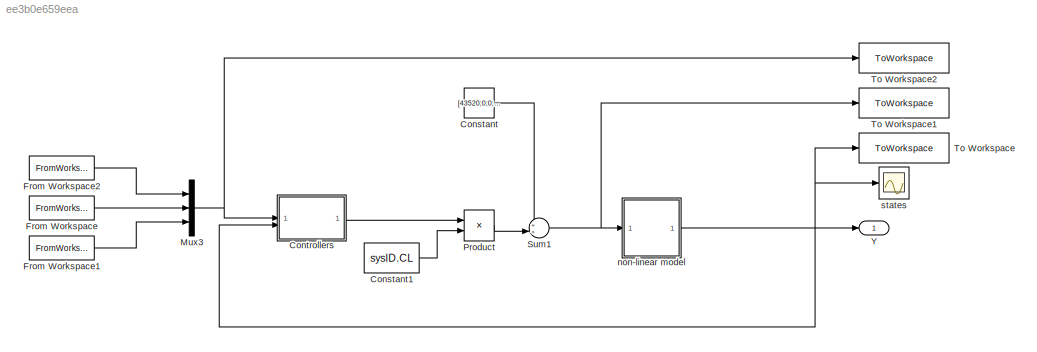
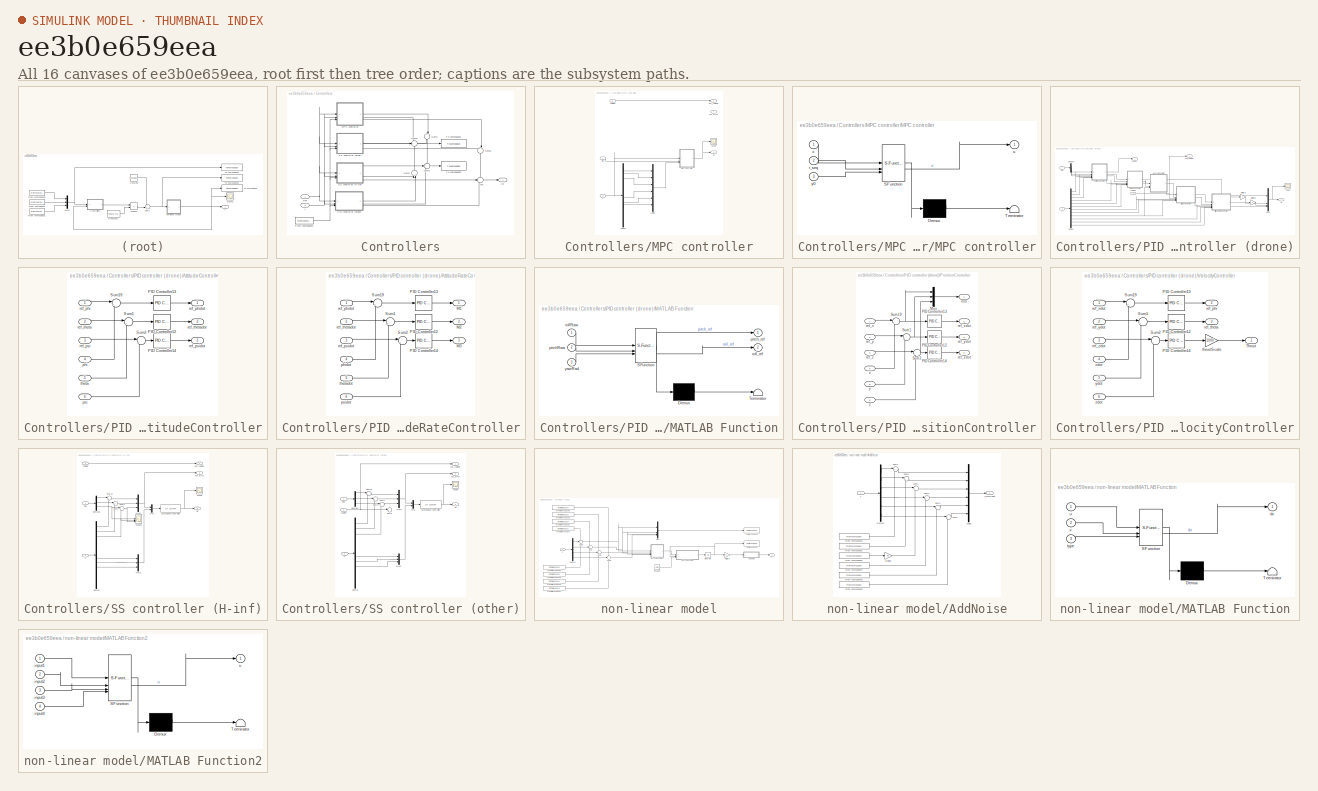
[diagram: thumbnail index - all 16 canvases of the model, root first then tree order]
MODEL slx_ee3b0e659eea
KIND model
CONFIG AbsTol = auto
CONFIG EnableMultiTasking = off
CONFIG FixedStep = Ts
CONFIG InitFcn = sysParam = load("sysParam.mat");\nload('./zz_temp/controlletTypeToUse.mat')\n
CONFIG MaxStep = 0.002
CONFIG MinStep = auto
CONFIG RelTol = 1e-3
CONFIG SampleTimeConstraint = Unconstrained
CONFIG SolverName = ode23t
CONFIG StartTime = 0.0
CONFIG StopTime = Tend
BLOCK [Constant] Constant
  Value = [43520;0;0;0]
BLOCK [Constant] Constant1
  Value = sysID.CL
BLOCK [SubSystem] Controllers
BLOCK [FromWorkspace] Controllers/From Workspace2
  VariableName = sim_ref_yaw
BLOCK [SubSystem] Controllers/MPC controller
  Commented = on
BLOCK [Mux] Controllers/MPC controller/Angles
  DisplayOption = bar
  Inputs = 6
BLOCK [Demux] Controllers/MPC controller/Demux
  Outputs = 12
BLOCK [SubSystem] Controllers/MPC controller/MPC controller
  ErrorFcn = Stateflow.Translate.translate
  PermitHierarchicalResolution = ExplicitOnly
  SFBlockType = MATLAB Function
  TreatAsAtomicUnit = on
BLOCK [Demux] Controllers/MPC controller/MPC controller/ Demux 
  Outputs = 1
BLOCK [S-Function] Controllers/MPC controller/MPC controller/ SFunction 
  EnableBusSupport = on
  FunctionName = sf_sfun
  PortCounts = [3 2]
  SFcnIsStateOwnerBlock = off
  SFunctionDeploymentMode = off
  Tag = Stateflow S-Function 5
BLOCK [Terminator] Controllers/MPC controller/MPC controller/ Terminator 
BLOCK [Inport] Controllers/MPC controller/MPC controller/r_seq
  Port = 2
BLOCK [Outport] Controllers/MPC controller/MPC controller/u
BLOCK [Inport] Controllers/MPC controller/MPC controller/x
BLOCK [Inport] Controllers/MPC controller/MPC controller/y0
  Port = 3
BLOCK [Inport] Controllers/MPC controller/Ref
BLOCK [Scope] Controllers/MPC controller/Scope
  Floating = off
  NumInputPorts = 1
  ScopeSpecificationString = Simulink.scopes.TimeScopeBlockCfg('CurrentConfiguration', extmgr.ConfigurationSet(extmgr.Configuration('Core','General UI',true),extmgr.Configuration('Core','Source UI',true),extmgr.Configuration('Sources','WiredSimulink',true,'DataLoggingVariableName','ScopeData2'),extmgr.Configuration('Visuals','Time Domain',true,'SerializedDisplays',{struct('MinYLimReal','-1208.62536','MaxYLimReal','134.29358',...<+1553ch>
BLOCK [Outport] Controllers/MPC controller/Uk
  Port = 3
BLOCK [Inport] Controllers/MPC controller/Y
  Port = 2
BLOCK [Outport] Controllers/MPC controller/out_error
  Port = 2
BLOCK [Outport] Controllers/MPC controller/out_yawRef
BLOCK [Inport] Controllers/MPC controller/yawRef
  Port = 3
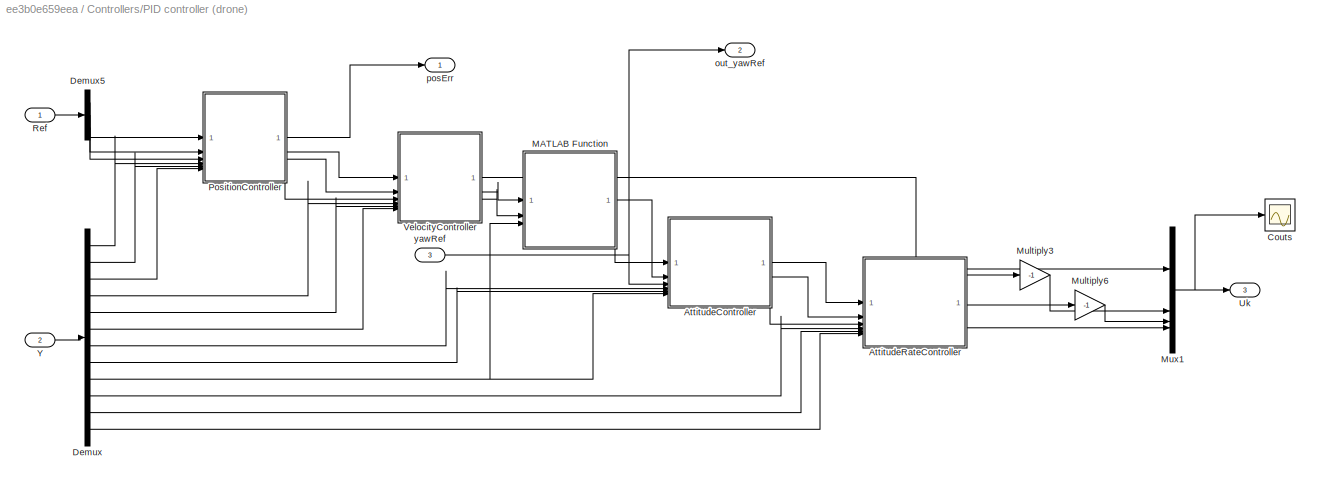
BLOCK [SubSystem] Controllers/PID controller (drone)
BLOCK [SubSystem] Controllers/PID controller (drone)/AttitudeController
BLOCK [Reference] Controllers/PID controller (drone)/AttitudeController/PID Controller12  REF=slpidlib/PID Controller
  LibrarySourceBlock = simulink/Continuous/PID Controller
  SourceBlock = slpidlib/PID Controller
  SourceType = PID 1dof
BLOCK [Reference] Controllers/PID controller (drone)/AttitudeController/PID Controller13  REF=slpidlib/PID Controller
  LibrarySourceBlock = simulink/Continuous/PID Controller
  SourceBlock = slpidlib/PID Controller
  SourceType = PID 1dof
BLOCK [Reference] Controllers/PID controller (drone)/AttitudeController/PID Controller14  REF=slpidlib/PID Controller
  LibrarySourceBlock = simulink/Continuous/PID Controller
  SourceBlock = slpidlib/PID Controller
  SourceType = PID 1dof
BLOCK [Sum] Controllers/PID controller (drone)/AttitudeController/Sum1
  Inputs = |+-
BLOCK [Sum] Controllers/PID controller (drone)/AttitudeController/Sum19
  Inputs = |+-
BLOCK [Sum] Controllers/PID controller (drone)/AttitudeController/Sum2
  Inputs = |+-
BLOCK [Inport] Controllers/PID controller (drone)/AttitudeController/phi
  Port = 4
BLOCK [Inport] Controllers/PID controller (drone)/AttitudeController/psi
  Port = 6
BLOCK [Inport] Controllers/PID controller (drone)/AttitudeController/ref_phi
BLOCK [Outport] Controllers/PID controller (drone)/AttitudeController/ref_phidot
BLOCK [Inport] Controllers/PID controller (drone)/AttitudeController/ref_psi
  Port = 3
BLOCK [Outport] Controllers/PID controller (drone)/AttitudeController/ref_psidot
  Port = 3
BLOCK [Inport] Controllers/PID controller (drone)/AttitudeController/ref_theta
  Port = 2
BLOCK [Outport] Controllers/PID controller (drone)/AttitudeController/ref_thetadot
  Port = 2
BLOCK [Inport] Controllers/PID controller (drone)/AttitudeController/theta
  Port = 5
BLOCK [SubSystem] Controllers/PID controller (drone)/AttitudeRateController
BLOCK [Outport] Controllers/PID controller (drone)/AttitudeRateController/M1
BLOCK [Outport] Controllers/PID controller (drone)/AttitudeRateController/M2
  Port = 2
BLOCK [Outport] Controllers/PID controller (drone)/AttitudeRateController/M3
  Port = 3
BLOCK [Reference] Controllers/PID controller (drone)/AttitudeRateController/PID Controller12  REF=slpidlib/PID Controller
  LibrarySourceBlock = simulink/Continuous/PID Controller
  SourceBlock = slpidlib/PID Controller
  SourceType = PID 1dof
BLOCK [Reference] Controllers/PID controller (drone)/AttitudeRateController/PID Controller13  REF=slpidlib/PID Controller
  LibrarySourceBlock = simulink/Continuous/PID Controller
  SourceBlock = slpidlib/PID Controller
  SourceType = PID 1dof
BLOCK [Reference] Controllers/PID controller (drone)/AttitudeRateController/PID Controller14  REF=slpidlib/PID Controller
  LibrarySourceBlock = simulink/Continuous/PID Controller
  SourceBlock = slpidlib/PID Controller
  SourceType = PID 1dof
BLOCK [Sum] Controllers/PID controller (drone)/AttitudeRateController/Sum1
  Inputs = |+-
BLOCK [Sum] Controllers/PID controller (drone)/AttitudeRateController/Sum19
  Inputs = |+-
BLOCK [Sum] Controllers/PID controller (drone)/AttitudeRateController/Sum2
  Inputs = |+-
BLOCK [Inport] Controllers/PID controller (drone)/AttitudeRateController/phidot
  Port = 4
BLOCK [Inport] Controllers/PID controller (drone)/AttitudeRateController/psidot
  Port = 6
BLOCK [Inport] Controllers/PID controller (drone)/AttitudeRateController/ref_phidot
BLOCK [Inport] Controllers/PID controller (drone)/AttitudeRateController/ref_psidot
  Port = 3
BLOCK [Inport] Controllers/PID controller (drone)/AttitudeRateController/ref_thetadot
  Port = 2
BLOCK [Inport] Controllers/PID controller (drone)/AttitudeRateController/thetadot
  Port = 5
BLOCK [Scope] Controllers/PID controller (drone)/Couts
  Floating = off
  NumInputPorts = 1
  ScopeSpecificationString = Simulink.scopes.TimeScopeBlockCfg('CurrentConfiguration', extmgr.ConfigurationSet(extmgr.Configuration('Core','General UI',true),extmgr.Configuration('Core','Source UI',true),extmgr.Configuration('Sources','WiredSimulink',true,'DataLoggingVariableName','ScopeData2'),extmgr.Configuration('Visuals','Time Domain',true,'SerializedDisplays',{struct('MinYLimReal','-1444.57338','MaxYLimReal','6495.14001'...<+1593ch>
BLOCK [Demux] Controllers/PID controller (drone)/Demux
  Outputs = 12
BLOCK [Demux] Controllers/PID controller (drone)/Demux5
  Outputs = 3
BLOCK [SubSystem] Controllers/PID controller (drone)/MATLAB Function
  ErrorFcn = Stateflow.Translate.translate
  PermitHierarchicalResolution = ExplicitOnly
  SFBlockType = MATLAB Function
  TreatAsAtomicUnit = on
BLOCK [Demux] Controllers/PID controller (drone)/MATLAB Function/ Demux 
  Outputs = 1
BLOCK [S-Function] Controllers/PID controller (drone)/MATLAB Function/ SFunction 
  EnableBusSupport = on
  FunctionName = sf_sfun
  PortCounts = [3 3]
  SFcnIsStateOwnerBlock = off
  SFunctionDeploymentMode = off
  Tag = Stateflow S-Function 3
BLOCK [Terminator] Controllers/PID controller (drone)/MATLAB Function/ Terminator 
BLOCK [Inport] Controllers/PID controller (drone)/MATLAB Function/pitchRaw
  Port = 2
BLOCK [Outport] Controllers/PID controller (drone)/MATLAB Function/pitch_ref
BLOCK [Inport] Controllers/PID controller (drone)/MATLAB Function/rollRaw
BLOCK [Outport] Controllers/PID controller (drone)/MATLAB Function/roll_ref
  Port = 2
BLOCK [Inport] Controllers/PID controller (drone)/MATLAB Function/yawRad
  Port = 3
BLOCK [Gain] Controllers/PID controller (drone)/Multiply3
  Gain = -1
BLOCK [Gain] Controllers/PID controller (drone)/Multiply6
  Gain = -1
BLOCK [Mux] Controllers/PID controller (drone)/Mux1
  DisplayOption = bar
BLOCK [SubSystem] Controllers/PID controller (drone)/PositionController
BLOCK [Mux] Controllers/PID controller (drone)/PositionController/Mux
  DisplayOption = bar
  Inputs = 3
BLOCK [Reference] Controllers/PID controller (drone)/PositionController/PID Controller12  REF=slpidlib/PID Controller
  LibrarySourceBlock = simulink/Continuous/PID Controller
  SourceBlock = slpidlib/PID Controller
  SourceType = PID 1dof
BLOCK [Reference] Controllers/PID controller (drone)/PositionController/PID Controller13  REF=slpidlib/PID Controller
  LibrarySourceBlock = simulink/Continuous/PID Controller
  SourceBlock = slpidlib/PID Controller
  SourceType = PID 1dof
BLOCK [Reference] Controllers/PID controller (drone)/PositionController/PID Controller14  REF=slpidlib/PID Controller
  LibrarySourceBlock = simulink/Continuous/PID Controller
  SourceBlock = slpidlib/PID Controller
  SourceType = PID 1dof
BLOCK [Sum] Controllers/PID controller (drone)/PositionController/Sum1
  Inputs = |+-
BLOCK [Sum] Controllers/PID controller (drone)/PositionController/Sum19
  Inputs = |+-
BLOCK [Sum] Controllers/PID controller (drone)/PositionController/Sum2
  Inputs = |+-
BLOCK [Outport] Controllers/PID controller (drone)/PositionController/errs
BLOCK [Inport] Controllers/PID controller (drone)/PositionController/ref_x
BLOCK [Outport] Controllers/PID controller (drone)/PositionController/ref_xdot
  Port = 2
BLOCK [Inport] Controllers/PID controller (drone)/PositionController/ref_y
  Port = 2
BLOCK [Outport] Controllers/PID controller (drone)/PositionController/ref_ydot
  Port = 3
BLOCK [Inport] Controllers/PID controller (drone)/PositionController/ref_z
  Port = 3
BLOCK [Outport] Controllers/PID controller (drone)/PositionController/ref_zdot
  Port = 4
BLOCK [Inport] Controllers/PID controller (drone)/PositionController/x
  Port = 4
BLOCK [Inport] Controllers/PID controller (drone)/PositionController/y
  Port = 5
BLOCK [Inport] Controllers/PID controller (drone)/PositionController/z
  Port = 6
BLOCK [Inport] Controllers/PID controller (drone)/Ref
BLOCK [Outport] Controllers/PID controller (drone)/Uk
  Port = 3
BLOCK [SubSystem] Controllers/PID controller (drone)/VelocityController
BLOCK [Reference] Controllers/PID controller (drone)/VelocityController/PID Controller12  REF=slpidlib/PID Controller
  LibrarySourceBlock = simulink/Continuous/PID Controller
  SourceBlock = slpidlib/PID Controller
  SourceType = PID 1dof
BLOCK [Reference] Controllers/PID controller (drone)/VelocityController/PID Controller13  REF=slpidlib/PID Controller
  LibrarySourceBlock = simulink/Continuous/PID Controller
  SourceBlock = slpidlib/PID Controller
  SourceType = PID 1dof
BLOCK [Reference] Controllers/PID controller (drone)/VelocityController/PID Controller14  REF=slpidlib/PID Controller
  LibrarySourceBlock = simulink/Continuous/PID Controller
  SourceBlock = slpidlib/PID Controller
  SourceType = PID 1dof
BLOCK [Sum] Controllers/PID controller (drone)/VelocityController/Sum1
  Inputs = |+-
BLOCK [Sum] Controllers/PID controller (drone)/VelocityController/Sum19
  Inputs = |+-
BLOCK [Sum] Controllers/PID controller (drone)/VelocityController/Sum2
  Inputs = |+-
BLOCK [Outport] Controllers/PID controller (drone)/VelocityController/Thrust
BLOCK [Outport] Controllers/PID controller (drone)/VelocityController/ref_phi
  Port = 2
BLOCK [Outport] Controllers/PID controller (drone)/VelocityController/ref_theta
  Port = 3
BLOCK [Inport] Controllers/PID controller (drone)/VelocityController/ref_xdot
BLOCK [Inport] Controllers/PID controller (drone)/VelocityController/ref_ydot
  Port = 2
BLOCK [Inport] Controllers/PID controller (drone)/VelocityController/ref_zdot
  Port = 3
BLOCK [Gain] Controllers/PID controller (drone)/VelocityController/thrustScale
  Gain = 1000
BLOCK [Inport] Controllers/PID controller (drone)/VelocityController/xdot
  Port = 4
BLOCK [Inport] Controllers/PID controller (drone)/VelocityController/ydot
  Port = 5
BLOCK [Inport] Controllers/PID controller (drone)/VelocityController/zdot
  Port = 6
BLOCK [Inport] Controllers/PID controller (drone)/Y
  Port = 2
BLOCK [Outport] Controllers/PID controller (drone)/out_yawRef
  Port = 2
BLOCK [Outport] Controllers/PID controller (drone)/posErr
BLOCK [Inport] Controllers/PID controller (drone)/yawRef
  Port = 3
BLOCK [Inport] Controllers/Ref
BLOCK [SubSystem] Controllers/SS controller (H-inf)
  Commented = on
BLOCK [Demux] Controllers/SS controller (H-inf)/Demux
  Outputs = 12
BLOCK [Demux] Controllers/SS controller (H-inf)/Demux5
  Outputs = 3
BLOCK [Mux] Controllers/SS controller (H-inf)/Mux
  DisplayOption = bar
  Inputs = 2
BLOCK [Mux] Controllers/SS controller (H-inf)/Mux2
  DisplayOption = bar
  Inputs = 3
BLOCK [Mux] Controllers/SS controller (H-inf)/Mux3
  DisplayOption = bar
  Inputs = 3
BLOCK [Inport] Controllers/SS controller (H-inf)/Ref
BLOCK [Scope] Controllers/SS controller (H-inf)/Scope
  Floating = off
  NumInputPorts = 1
  ScopeSpecificationString = Simulink.scopes.TimeScopeBlockCfg('CurrentConfiguration', extmgr.ConfigurationSet(extmgr.Configuration('Core','General UI',true),extmgr.Configuration('Core','Source UI',true),extmgr.Configuration('Sources','WiredSimulink',true,'DataLoggingVariableName','ScopeData1'),extmgr.Configuration('Visuals','Time Domain',true,'SerializedDisplays',{struct('MinYLimReal','-113.57752','MaxYLimReal','97.64165','Y...<+1549ch>
BLOCK [Scope] Controllers/SS controller (H-inf)/Scope1
  Floating = off
  NumInputPorts = 3
  ScopeSpecificationString = Simulink.scopes.TimeScopeBlockCfg('CurrentConfiguration', extmgr.ConfigurationSet(extmgr.Configuration('Core','General UI',true),extmgr.Configuration('Core','Source UI',true),extmgr.Configuration('Sources','WiredSimulink',true,'DataLoggingVariableName','ScopeData1'),extmgr.Configuration('Visuals','Time Domain',true,'SerializedDisplays',{struct('MinYLimReal','-0.00691','MaxYLimReal','0.03691','YLab...<+1439ch>
BLOCK [Reference] Controllers/SS controller (H-inf)/StateSpace Controller  REF=cstblocks/LTI System
  SourceBlock = cstblocks/LTI System
  SourceType = LTI Block
BLOCK [Sum] Controllers/SS controller (H-inf)/Sum1
  Inputs = |+-
BLOCK [Sum] Controllers/SS controller (H-inf)/Sum19
  Inputs = |+-
BLOCK [Sum] Controllers/SS controller (H-inf)/Sum2
  Inputs = |+-
BLOCK [Outport] Controllers/SS controller (H-inf)/Uk
  Port = 3
BLOCK [Inport] Controllers/SS controller (H-inf)/Y
  Port = 2
BLOCK [Outport] Controllers/SS controller (H-inf)/out_error
  Port = 2
BLOCK [Outport] Controllers/SS controller (H-inf)/out_yawRef
BLOCK [Inport] Controllers/SS controller (H-inf)/yawRef
  Port = 3
BLOCK [SubSystem] Controllers/SS controller (other)
  Commented = on
BLOCK [Demux] Controllers/SS controller (other)/Demux
  Outputs = 12
BLOCK [Demux] Controllers/SS controller (other)/Demux5
  Outputs = 3
BLOCK [Mux] Controllers/SS controller (other)/Mux
  DisplayOption = bar
  Inputs = 2
BLOCK [Mux] Controllers/SS controller (other)/Mux2
  DisplayOption = bar
  Inputs = 3
BLOCK [Mux] Controllers/SS controller (other)/Mux3
  DisplayOption = bar
  Inputs = 3
BLOCK [Inport] Controllers/SS controller (other)/Ref
BLOCK [Scope] Controllers/SS controller (other)/Scope
  Floating = off
  NumInputPorts = 1
  ScopeSpecificationString = Simulink.scopes.TimeScopeBlockCfg('CurrentConfiguration', extmgr.ConfigurationSet(extmgr.Configuration('Core','General UI',true),extmgr.Configuration('Core','Source UI',true),extmgr.Configuration('Sources','WiredSimulink',true,'DataLoggingVariableName','ScopeData1'),extmgr.Configuration('Visuals','Time Domain',true,'SerializedDisplays',{struct('MinYLimReal','-1208.62536','MaxYLimReal','134.29358',...<+1553ch>
BLOCK [Reference] Controllers/SS controller (other)/StateSpace Controller  REF=cstblocks/LTI System
  SourceBlock = cstblocks/LTI System
  SourceType = LTI Block
BLOCK [Sum] Controllers/SS controller (other)/Sum1
  Inputs = |+-
BLOCK [Sum] Controllers/SS controller (other)/Sum19
  Inputs = |+-
BLOCK [Sum] Controllers/SS controller (other)/Sum2
  Inputs = |+-
BLOCK [Sum] Controllers/SS controller (other)/Sum3
  Inputs = |+-
BLOCK [Outport] Controllers/SS controller (other)/Uk
  Port = 3
BLOCK [Inport] Controllers/SS controller (other)/Y
  Port = 2
BLOCK [Outport] Controllers/SS controller (other)/out_error
  Port = 2
BLOCK [Outport] Controllers/SS controller (other)/out_yawRef
BLOCK [Inport] Controllers/SS controller (other)/yawRef
  Port = 3
BLOCK [Sum] Controllers/Sum
  Inputs = +++
BLOCK [Sum] Controllers/Sum1
  Inputs = +++
BLOCK [Sum] Controllers/Sum3
  Inputs = ++|
  NameLocation = right
BLOCK [Sum] Controllers/Sum4
  Inputs = ++|
  NameLocation = left
BLOCK [Sum] Controllers/Sum5
  Inputs = ++|
  NameLocation = left
BLOCK [Sum] Controllers/Sum6
  Inputs = +++
BLOCK [ToWorkspace] Controllers/To Workspace1
  FixptAsFi = on
  MaxDataPoints = inf
  SampleTime = -1
  SaveFormat = Timeseries
  VariableName = error
BLOCK [ToWorkspace] Controllers/To Workspace2
  FixptAsFi = on
  MaxDataPoints = inf
  SampleTime = -1
  SaveFormat = Timeseries
  VariableName = yawRef
BLOCK [Outport] Controllers/Uk
BLOCK [Inport] Controllers/Y
  Port = 2
BLOCK [FromWorkspace] From Workspace
  VariableName = sim_ref_y
BLOCK [FromWorkspace] From Workspace1
  VariableName = sim_ref_z
BLOCK [FromWorkspace] From Workspace2
  VariableName = sim_ref_x
BLOCK [Mux] Mux3
  DisplayOption = bar
  Inputs = 3
BLOCK [Product] Product
BLOCK [Sum] Sum1
  Inputs = ++|
BLOCK [ToWorkspace] To Workspace
  FixptAsFi = on
  MaxDataPoints = inf
  SampleTime = -1
  SaveFormat = Timeseries
  VariableName = pos
BLOCK [ToWorkspace] To Workspace1
  FixptAsFi = on
  MaxDataPoints = inf
  SampleTime = -1
  SaveFormat = Timeseries
  VariableName = controllerOutput
BLOCK [ToWorkspace] To Workspace2
  FixptAsFi = on
  MaxDataPoints = inf
  SampleTime = -1
  SaveFormat = Timeseries
  VariableName = posRef
BLOCK [Outport] Y
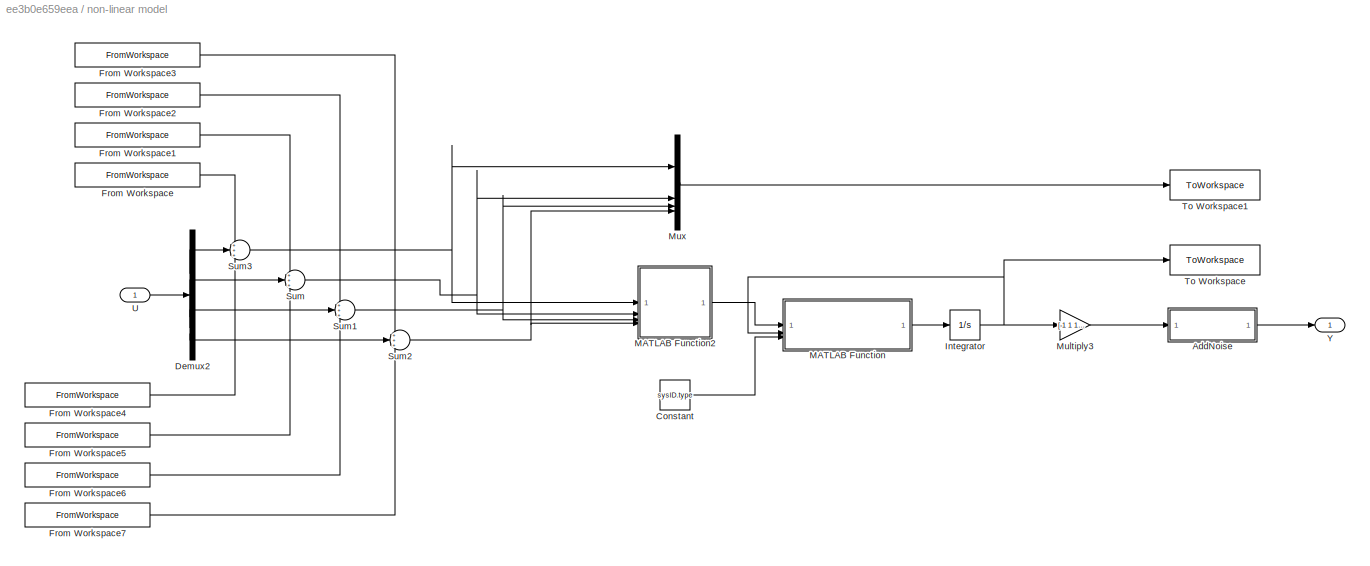
BLOCK [SubSystem] non-linear model
BLOCK [SubSystem] non-linear model/AddNoise
BLOCK [Mux] non-linear model/AddNoise/Angles
  DisplayOption = bar
  Inputs = 6
BLOCK [Demux] non-linear model/AddNoise/Demux
  Outputs = 6
BLOCK [FromWorkspace] non-linear model/AddNoise/From Workspace1
  VariableName = noiseParam.y
BLOCK [FromWorkspace] non-linear model/AddNoise/From Workspace2
  VariableName = noiseParam.z
BLOCK [FromWorkspace] non-linear model/AddNoise/From Workspace3
  VariableName = noiseParam.x
BLOCK [FromWorkspace] non-linear model/AddNoise/From Workspace4
  VariableName = noiseParam.phi
BLOCK [FromWorkspace] non-linear model/AddNoise/From Workspace5
  VariableName = noiseParam.psi
BLOCK [FromWorkspace] non-linear model/AddNoise/From Workspace6
  VariableName = noiseParam.theta
BLOCK [Gain] non-linear model/AddNoise/Multiply
  Gain = 0.5
BLOCK [Sum] non-linear model/AddNoise/Sum1
  Inputs = |++
BLOCK [Sum] non-linear model/AddNoise/Sum2
  Inputs = |++
BLOCK [Sum] non-linear model/AddNoise/Sum3
  Inputs = |++
BLOCK [Sum] non-linear model/AddNoise/Sum4
  Inputs = |++
BLOCK [Sum] non-linear model/AddNoise/Sum5
  Inputs = |++
BLOCK [Sum] non-linear model/AddNoise/Sum6
  Inputs = |++
BLOCK [Inport] non-linear model/AddNoise/Y
BLOCK [Outport] non-linear model/AddNoise/Y_withNoise
BLOCK [Constant] non-linear model/Constant
  Value = sysID.type
BLOCK [Demux] non-linear model/Demux2
BLOCK [FromWorkspace] non-linear model/From Workspace
  VariableName = sysID.Thrust_PRBS
BLOCK [FromWorkspace] non-linear model/From Workspace1
  VariableName = sysID.M1_PRBS
BLOCK [FromWorkspace] non-linear model/From Workspace2
  VariableName = sysID.M2_PRBS
BLOCK [FromWorkspace] non-linear model/From Workspace3
  VariableName = sysID.M3_PRBS
BLOCK [FromWorkspace] non-linear model/From Workspace4
  VariableName = noiseParam.Thrust
BLOCK [FromWorkspace] non-linear model/From Workspace5
  VariableName = noiseParam.Mx
BLOCK [FromWorkspace] non-linear model/From Workspace6
  VariableName = noiseParam.My
BLOCK [FromWorkspace] non-linear model/From Workspace7
  VariableName = noiseParam.Mz
BLOCK [Integrator] non-linear model/Integrator
  InitialCondition = [0;0;0;0;0;0;0;0;0;0;0;0]
  LimitOutput = on
  LowerSaturationLimit = -[inf inf 0 inf inf inf inf inf inf inf inf inf]'
  NameLocation = top
  UpperSaturationLimit = [inf inf inf inf inf inf inf inf inf inf inf inf]'
BLOCK [SubSystem] non-linear model/MATLAB Function
  ErrorFcn = Stateflow.Translate.translate
  PermitHierarchicalResolution = ExplicitOnly
  SFBlockType = MATLAB Function
  TreatAsAtomicUnit = on
BLOCK [Demux] non-linear model/MATLAB Function/ Demux 
  Outputs = 1
BLOCK [S-Function] non-linear model/MATLAB Function/ SFunction 
  EnableBusSupport = on
  FunctionName = sf_sfun
  Parameters = sys_param2
  PortCounts = [3 2]
  SFcnIsStateOwnerBlock = off
  SFunctionDeploymentMode = off
  Tag = Stateflow S-Function 2
BLOCK [Terminator] non-linear model/MATLAB Function/ Terminator 
BLOCK [Outport] non-linear model/MATLAB Function/dx
BLOCK [Inport] non-linear model/MATLAB Function/type
  Port = 3
BLOCK [Inport] non-linear model/MATLAB Function/u
BLOCK [Inport] non-linear model/MATLAB Function/x
  Port = 2
BLOCK [SubSystem] non-linear model/MATLAB Function2
  ErrorFcn = Stateflow.Translate.translate
  PermitHierarchicalResolution = ExplicitOnly
  SFBlockType = MATLAB Function
  TreatAsAtomicUnit = on
BLOCK [Demux] non-linear model/MATLAB Function2/ Demux 
  Outputs = 1
BLOCK [S-Function] non-linear model/MATLAB Function2/ SFunction 
  EnableBusSupport = on
  FunctionName = sf_sfun
  PortCounts = [4 2]
  SFcnIsStateOwnerBlock = off
  SFunctionDeploymentMode = off
  Tag = Stateflow S-Function 4
BLOCK [Terminator] non-linear model/MATLAB Function2/ Terminator 
BLOCK [Inport] non-linear model/MATLAB Function2/input1
BLOCK [Inport] non-linear model/MATLAB Function2/input2
  Port = 2
BLOCK [Inport] non-linear model/MATLAB Function2/input3
  Port = 3
BLOCK [Inport] non-linear model/MATLAB Function2/input4
  Port = 4
BLOCK [Outport] non-linear model/MATLAB Function2/u
BLOCK [Gain] non-linear model/Multiply3
  Gain = [-1 1 1 -1 1 1 180/pi 180/pi 180/pi 180/pi 180/pi 180/pi]'
BLOCK [Mux] non-linear model/Mux
  DisplayOption = bar
BLOCK [Sum] non-linear model/Sum
  Inputs = +++
BLOCK [Sum] non-linear model/Sum1
  Inputs = +++
BLOCK [Sum] non-linear model/Sum2
  Inputs = +++
BLOCK [Sum] non-linear model/Sum3
  Inputs = +++
BLOCK [ToWorkspace] non-linear model/To Workspace
  FixptAsFi = on
  MaxDataPoints = inf
  SampleTime = -1
  SaveFormat = Timeseries
  VariableName = stateVec
BLOCK [ToWorkspace] non-linear model/To Workspace1
  FixptAsFi = on
  MaxDataPoints = inf
  SampleTime = -1
  SaveFormat = Timeseries
  VariableName = plantInput
BLOCK [Inport] non-linear model/U
  PortDimensions = 4
BLOCK [Outport] non-linear model/Y
BLOCK [Scope] states
  Floating = off
  NumInputPorts = 1
  ScopeSpecificationString = Simulink.scopes.TimeScopeBlockCfg('CurrentConfiguration', extmgr.ConfigurationSet(extmgr.Configuration('Core','General UI',true),extmgr.Configuration('Core','Source UI',true),extmgr.Configuration('Sources','WiredSimulink',true),extmgr.Configuration('Visuals','Time Domain',true,'SerializedDisplays',{struct('MinYLimReal','-25.23049','MaxYLimReal','18.95808','YLabelReal','','MinYLimMag','0.00000','Ma...<+1704ch>
LINE Constant1:1 -> Product:2
LINE Constant:1 -> Sum1:1
NET Controllers/From Workspace2:1 -> Controllers/MPC controller:3, Controllers/PID controller (drone):3, Controllers/SS controller (H-inf):3, Controllers/SS controller (other):3
LINE Controllers/MPC controller/Angles:1 -> Controllers/MPC controller/MPC controller:3
LINE Controllers/MPC controller/Demux:1 -> Controllers/MPC controller/Angles:1
LINE Controllers/MPC controller/Demux:2 -> Controllers/MPC controller/Angles:2
LINE Controllers/MPC controller/Demux:3 -> Controllers/MPC controller/Angles:3
LINE Controllers/MPC controller/Demux:7 -> Controllers/MPC controller/Angles:4
LINE Controllers/MPC controller/Demux:8 -> Controllers/MPC controller/Angles:5
LINE Controllers/MPC controller/Demux:9 -> Controllers/MPC controller/Angles:6
NET Controllers/MPC controller/MPC controller:1 -> Controllers/MPC controller/Scope:1, Controllers/MPC controller/Uk:1
LINE Controllers/MPC controller/Ref:1 -> Controllers/MPC controller/MPC controller:2
NET Controllers/MPC controller/Y:1 -> Controllers/MPC controller/Demux:1, Controllers/MPC controller/MPC controller:1
LINE Controllers/MPC controller/yawRef:1 -> Controllers/MPC controller/out_yawRef:1
LINE Controllers/MPC controller:1 -> Controllers/Sum4:2
LINE Controllers/MPC controller:2 -> Controllers/Sum6:1
LINE Controllers/MPC controller:3 -> Controllers/Sum5:2
LINE Controllers/PID controller (drone)/AttitudeController/PID Controller12:1 -> Controllers/PID controller (drone)/AttitudeController/ref_thetadot:1
LINE Controllers/PID controller (drone)/AttitudeController/PID Controller13:1 -> Controllers/PID controller (drone)/AttitudeController/ref_phidot:1
LINE Controllers/PID controller (drone)/AttitudeController/PID Controller14:1 -> Controllers/PID controller (drone)/AttitudeController/ref_psidot:1
LINE Controllers/PID controller (drone)/AttitudeController/Sum19:1 -> Controllers/PID controller (drone)/AttitudeController/PID Controller13:1
LINE Controllers/PID controller (drone)/AttitudeController/Sum1:1 -> Controllers/PID controller (drone)/AttitudeController/PID Controller12:1
LINE Controllers/PID controller (drone)/AttitudeController/Sum2:1 -> Controllers/PID controller (drone)/AttitudeController/PID Controller14:1
LINE Controllers/PID controller (drone)/AttitudeController/phi:1 -> Controllers/PID controller (drone)/AttitudeController/Sum19:2
LINE Controllers/PID controller (drone)/AttitudeController/psi:1 -> Controllers/PID controller (drone)/AttitudeController/Sum2:2
LINE Controllers/PID controller (drone)/AttitudeController/ref_phi:1 -> Controllers/PID controller (drone)/AttitudeController/Sum19:1
LINE Controllers/PID controller (drone)/AttitudeController/ref_psi:1 -> Controllers/PID controller (drone)/AttitudeController/Sum2:1
LINE Controllers/PID controller (drone)/AttitudeController/ref_theta:1 -> Controllers/PID controller (drone)/AttitudeController/Sum1:1
LINE Controllers/PID controller (drone)/AttitudeController/theta:1 -> Controllers/PID controller (drone)/AttitudeController/Sum1:2
LINE Controllers/PID controller (drone)/AttitudeController:1 -> Controllers/PID controller (drone)/AttitudeRateController:1
LINE Controllers/PID controller (drone)/AttitudeController:2 -> Controllers/PID controller (drone)/AttitudeRateController:2
LINE Controllers/PID controller (drone)/AttitudeController:3 -> Controllers/PID controller (drone)/AttitudeRateController:3
LINE Controllers/PID controller (drone)/AttitudeRateController/PID Controller12:1 -> Controllers/PID controller (drone)/AttitudeRateController/M2:1
LINE Controllers/PID controller (drone)/AttitudeRateController/PID Controller13:1 -> Controllers/PID controller (drone)/AttitudeRateController/M1:1
LINE Controllers/PID controller (drone)/AttitudeRateController/PID Controller14:1 -> Controllers/PID controller (drone)/AttitudeRateController/M3:1
LINE Controllers/PID controller (drone)/AttitudeRateController/Sum19:1 -> Controllers/PID controller (drone)/AttitudeRateController/PID Controller13:1
LINE Controllers/PID controller (drone)/AttitudeRateController/Sum1:1 -> Controllers/PID controller (drone)/AttitudeRateController/PID Controller12:1
LINE Controllers/PID controller (drone)/AttitudeRateController/Sum2:1 -> Controllers/PID controller (drone)/AttitudeRateController/PID Controller14:1
LINE Controllers/PID controller (drone)/AttitudeRateController/phidot:1 -> Controllers/PID controller (drone)/AttitudeRateController/Sum19:2
LINE Controllers/PID controller (drone)/AttitudeRateController/psidot:1 -> Controllers/PID controller (drone)/AttitudeRateController/Sum2:2
LINE Controllers/PID controller (drone)/AttitudeRateController/ref_phidot:1 -> Controllers/PID controller (drone)/AttitudeRateController/Sum19:1
LINE Controllers/PID controller (drone)/AttitudeRateController/ref_psidot:1 -> Controllers/PID controller (drone)/AttitudeRateController/Sum2:1
LINE Controllers/PID controller (drone)/AttitudeRateController/ref_thetadot:1 -> Controllers/PID controller (drone)/AttitudeRateController/Sum1:1
LINE Controllers/PID controller (drone)/AttitudeRateController/thetadot:1 -> Controllers/PID controller (drone)/AttitudeRateController/Sum1:2
LINE Controllers/PID controller (drone)/AttitudeRateController:1 -> Controllers/PID controller (drone)/Multiply3:1
LINE Controllers/PID controller (drone)/AttitudeRateController:2 -> Controllers/PID controller (drone)/Multiply6:1
LINE Controllers/PID controller (drone)/AttitudeRateController:3 -> Controllers/PID controller (drone)/Mux1:4
LINE Controllers/PID controller (drone)/Demux5:1 -> Controllers/PID controller (drone)/PositionController:1
LINE Controllers/PID controller (drone)/Demux5:2 -> Controllers/PID controller (drone)/PositionController:2
LINE Controllers/PID controller (drone)/Demux5:3 -> Controllers/PID controller (drone)/PositionController:3
LINE Controllers/PID controller (drone)/Demux:1 -> Controllers/PID controller (drone)/PositionController:4
LINE Controllers/PID controller (drone)/Demux:10 -> Controllers/PID controller (drone)/AttitudeRateController:4
LINE Controllers/PID controller (drone)/Demux:11 -> Controllers/PID controller (drone)/AttitudeRateController:5
LINE Controllers/PID controller (drone)/Demux:12 -> Controllers/PID controller (drone)/AttitudeRateController:6
LINE Controllers/PID controller (drone)/Demux:2 -> Controllers/PID controller (drone)/PositionController:5
LINE Controllers/PID controller (drone)/Demux:3 -> Controllers/PID controller (drone)/PositionController:6
LINE Controllers/PID controller (drone)/Demux:4 -> Controllers/PID controller (drone)/VelocityController:4
LINE Controllers/PID controller (drone)/Demux:5 -> Controllers/PID controller (drone)/VelocityController:5
LINE Controllers/PID controller (drone)/Demux:6 -> Controllers/PID controller (drone)/VelocityController:6
LINE Controllers/PID controller (drone)/Demux:7 -> Controllers/PID controller (drone)/AttitudeController:4
LINE Controllers/PID controller (drone)/Demux:8 -> Controllers/PID controller (drone)/AttitudeController:5
NET Controllers/PID controller (drone)/Demux:9 -> Controllers/PID controller (drone)/AttitudeController:6, Controllers/PID controller (drone)/MATLAB Function:3
LINE Controllers/PID controller (drone)/MATLAB Function:1 -> Controllers/PID controller (drone)/AttitudeController:2
LINE Controllers/PID controller (drone)/MATLAB Function:2 -> Controllers/PID controller (drone)/AttitudeController:1
LINE Controllers/PID controller (drone)/Multiply3:1 -> Controllers/PID controller (drone)/Mux1:2
LINE Controllers/PID controller (drone)/Multiply6:1 -> Controllers/PID controller (drone)/Mux1:3
NET Controllers/PID controller (drone)/Mux1:1 -> Controllers/PID controller (drone)/Couts:1, Controllers/PID controller (drone)/Uk:1
LINE Controllers/PID controller (drone)/PositionController/Mux:1 -> Controllers/PID controller (drone)/PositionController/errs:1
LINE Controllers/PID controller (drone)/PositionController/PID Controller12:1 -> Controllers/PID controller (drone)/PositionController/ref_ydot:1
LINE Controllers/PID controller (drone)/PositionController/PID Controller13:1 -> Controllers/PID controller (drone)/PositionController/ref_xdot:1
LINE Controllers/PID controller (drone)/PositionController/PID Controller14:1 -> Controllers/PID controller (drone)/PositionController/ref_zdot:1
NET Controllers/PID controller (drone)/PositionController/Sum19:1 -> Controllers/PID controller (drone)/PositionController/Mux:1, Controllers/PID controller (drone)/PositionController/PID Controller13:1
NET Controllers/PID controller (drone)/PositionController/Sum1:1 -> Controllers/PID controller (drone)/PositionController/Mux:2, Controllers/PID controller (drone)/PositionController/PID Controller12:1
NET Controllers/PID controller (drone)/PositionController/Sum2:1 -> Controllers/PID controller (drone)/PositionController/Mux:3, Controllers/PID controller (drone)/PositionController/PID Controller14:1
LINE Controllers/PID controller (drone)/PositionController/ref_x:1 -> Controllers/PID controller (drone)/PositionController/Sum19:1
LINE Controllers/PID controller (drone)/PositionController/ref_y:1 -> Controllers/PID controller (drone)/PositionController/Sum1:1
LINE Controllers/PID controller (drone)/PositionController/ref_z:1 -> Controllers/PID controller (drone)/PositionController/Sum2:1
LINE Controllers/PID controller (drone)/PositionController/x:1 -> Controllers/PID controller (drone)/PositionController/Sum19:2
LINE Controllers/PID controller (drone)/PositionController/y:1 -> Controllers/PID controller (drone)/PositionController/Sum1:2
LINE Controllers/PID controller (drone)/PositionController/z:1 -> Controllers/PID controller (drone)/PositionController/Sum2:2
LINE Controllers/PID controller (drone)/PositionController:1 -> Controllers/PID controller (drone)/posErr:1
LINE Controllers/PID controller (drone)/PositionController:2 -> Controllers/PID controller (drone)/VelocityController:1
LINE Controllers/PID controller (drone)/PositionController:3 -> Controllers/PID controller (drone)/VelocityController:2
LINE Controllers/PID controller (drone)/PositionController:4 -> Controllers/PID controller (drone)/VelocityController:3
LINE Controllers/PID controller (drone)/Ref:1 -> Controllers/PID controller (drone)/Demux5:1
LINE Controllers/PID controller (drone)/VelocityController/PID Controller12:1 -> Controllers/PID controller (drone)/VelocityController/ref_theta:1
LINE Controllers/PID controller (drone)/VelocityController/PID Controller13:1 -> Controllers/PID controller (drone)/VelocityController/ref_phi:1
LINE Controllers/PID controller (drone)/VelocityController/PID Controller14:1 -> Controllers/PID controller (drone)/VelocityController/thrustScale:1
LINE Controllers/PID controller (drone)/VelocityController/Sum19:1 -> Controllers/PID controller (drone)/VelocityController/PID Controller13:1
LINE Controllers/PID controller (drone)/VelocityController/Sum1:1 -> Controllers/PID controller (drone)/VelocityController/PID Controller12:1
LINE Controllers/PID controller (drone)/VelocityController/Sum2:1 -> Controllers/PID controller (drone)/VelocityController/PID Controller14:1
LINE Controllers/PID controller (drone)/VelocityController/ref_xdot:1 -> Controllers/PID controller (drone)/VelocityController/Sum19:1
LINE Controllers/PID controller (drone)/VelocityController/ref_ydot:1 -> Controllers/PID controller (drone)/VelocityController/Sum1:1
LINE Controllers/PID controller (drone)/VelocityController/ref_zdot:1 -> Controllers/PID controller (drone)/VelocityController/Sum2:1
LINE Controllers/PID controller (drone)/VelocityController/thrustScale:1 -> Controllers/PID controller (drone)/VelocityController/Thrust:1
LINE Controllers/PID controller (drone)/VelocityController/xdot:1 -> Controllers/PID controller (drone)/VelocityController/Sum19:2
LINE Controllers/PID controller (drone)/VelocityController/ydot:1 -> Controllers/PID controller (drone)/VelocityController/Sum1:2
LINE Controllers/PID controller (drone)/VelocityController/zdot:1 -> Controllers/PID controller (drone)/VelocityController/Sum2:2
LINE Controllers/PID controller (drone)/VelocityController:1 -> Controllers/PID controller (drone)/Mux1:1
LINE Controllers/PID controller (drone)/VelocityController:2 -> Controllers/PID controller (drone)/MATLAB Function:1
LINE Controllers/PID controller (drone)/VelocityController:3 -> Controllers/PID controller (drone)/MATLAB Function:2
LINE Controllers/PID controller (drone)/Y:1 -> Controllers/PID controller (drone)/Demux:1
NET Controllers/PID controller (drone)/yawRef:1 -> Controllers/PID controller (drone)/AttitudeController:3, Controllers/PID controller (drone)/out_yawRef:1
LINE Controllers/PID controller (drone):1 -> Controllers/Sum3:2
LINE Controllers/PID controller (drone):2 -> Controllers/Sum1:3
LINE Controllers/PID controller (drone):3 -> Controllers/Sum:3
NET Controllers/Ref:1 -> Controllers/MPC controller:1, Controllers/PID controller (drone):1, Controllers/SS controller (H-inf):1, Controllers/SS controller (other):1
LINE Controllers/SS controller (H-inf)/Demux5:1 -> Controllers/SS controller (H-inf)/Sum19:1
LINE Controllers/SS controller (H-inf)/Demux5:2 -> Controllers/SS controller (H-inf)/Sum1:1
NET Controllers/SS controller (H-inf)/Demux5:3 -> Controllers/SS controller (H-inf)/Scope1:1, Controllers/SS controller (H-inf)/Sum2:1
LINE Controllers/SS controller (H-inf)/Demux:1 -> Controllers/SS controller (H-inf)/Sum19:2
LINE Controllers/SS controller (H-inf)/Demux:2 -> Controllers/SS controller (H-inf)/Sum1:2
NET Controllers/SS controller (H-inf)/Demux:3 -> Controllers/SS controller (H-inf)/Scope1:2, Controllers/SS controller (H-inf)/Sum2:2
LINE Controllers/SS controller (H-inf)/Demux:7 -> Controllers/SS controller (H-inf)/Mux3:1
LINE Controllers/SS controller (H-inf)/Demux:8 -> Controllers/SS controller (H-inf)/Mux3:2
LINE Controllers/SS controller (H-inf)/Demux:9 -> Controllers/SS controller (H-inf)/Mux3:3
NET Controllers/SS controller (H-inf)/Mux2:1 -> Controllers/SS controller (H-inf)/Mux:1, Controllers/SS controller (H-inf)/out_error:1
LINE Controllers/SS controller (H-inf)/Mux3:1 -> Controllers/SS controller (H-inf)/Mux:2
LINE Controllers/SS controller (H-inf)/Mux:1 -> Controllers/SS controller (H-inf)/StateSpace Controller:1
LINE Controllers/SS controller (H-inf)/Ref:1 -> Controllers/SS controller (H-inf)/Demux5:1
NET Controllers/SS controller (H-inf)/StateSpace Controller:1 -> Controllers/SS controller (H-inf)/Scope:1, Controllers/SS controller (H-inf)/Uk:1
LINE Controllers/SS controller (H-inf)/Sum19:1 -> Controllers/SS controller (H-inf)/Mux2:1
LINE Controllers/SS controller (H-inf)/Sum1:1 -> Controllers/SS controller (H-inf)/Mux2:2
NET Controllers/SS controller (H-inf)/Sum2:1 -> Controllers/SS controller (H-inf)/Mux2:3, Controllers/SS controller (H-inf)/Scope1:3
LINE Controllers/SS controller (H-inf)/Y:1 -> Controllers/SS controller (H-inf)/Demux:1
LINE Controllers/SS controller (H-inf)/yawRef:1 -> Controllers/SS controller (H-inf)/out_yawRef:1
LINE Controllers/SS controller (H-inf):1 -> Controllers/Sum1:2
LINE Controllers/SS controller (H-inf):2 -> Controllers/Sum3:1
LINE Controllers/SS controller (H-inf):3 -> Controllers/Sum:2
LINE Controllers/SS controller (other)/Demux5:1 -> Controllers/SS controller (other)/Sum19:1
LINE Controllers/SS controller (other)/Demux5:2 -> Controllers/SS controller (other)/Sum1:1
LINE Controllers/SS controller (other)/Demux5:3 -> Controllers/SS controller (other)/Sum2:1
LINE Controllers/SS controller (other)/Demux:1 -> Controllers/SS controller (other)/Sum19:2
LINE Controllers/SS controller (other)/Demux:2 -> Controllers/SS controller (other)/Sum1:2
LINE Controllers/SS controller (other)/Demux:3 -> Controllers/SS controller (other)/Sum2:2
LINE Controllers/SS controller (other)/Demux:7 -> Controllers/SS controller (other)/Mux3:1
LINE Controllers/SS controller (other)/Demux:8 -> Controllers/SS controller (other)/Mux3:2
LINE Controllers/SS controller (other)/Demux:9 -> Controllers/SS controller (other)/Mux3:3
NET Controllers/SS controller (other)/Mux2:1 -> Controllers/SS controller (other)/Mux:1, Controllers/SS controller (other)/out_error:1
LINE Controllers/SS controller (other)/Mux3:1 -> Controllers/SS controller (other)/Mux:2
LINE Controllers/SS controller (other)/Mux:1 -> Controllers/SS controller (other)/StateSpace Controller:1
LINE Controllers/SS controller (other)/Ref:1 -> Controllers/SS controller (other)/Demux5:1
NET Controllers/SS controller (other)/StateSpace Controller:1 -> Controllers/SS controller (other)/Scope:1, Controllers/SS controller (other)/Uk:1
LINE Controllers/SS controller (other)/Sum19:1 -> Controllers/SS controller (other)/Mux2:1
LINE Controllers/SS controller (other)/Sum1:1 -> Controllers/SS controller (other)/Mux2:2
LINE Controllers/SS controller (other)/Sum2:1 -> Controllers/SS controller (other)/Mux2:3
LINE Controllers/SS controller (other)/Y:1 -> Controllers/SS controller (other)/Demux:1
NET Controllers/SS controller (other)/yawRef:1 -> Controllers/SS controller (other)/Sum3:1, Controllers/SS controller (other)/out_yawRef:1
LINE Controllers/SS controller (other):1 -> Controllers/Sum4:1
LINE Controllers/SS controller (other):2 -> Controllers/Sum6:2
LINE Controllers/SS controller (other):3 -> Controllers/Sum5:1
LINE Controllers/Sum1:1 -> Controllers/To Workspace2:1
LINE Controllers/Sum3:1 -> Controllers/Sum6:3
LINE Controllers/Sum4:1 -> Controllers/Sum1:1
LINE Controllers/Sum5:1 -> Controllers/Sum:1
LINE Controllers/Sum6:1 -> Controllers/To Workspace1:1
LINE Controllers/Sum:1 -> Controllers/Uk:1
NET Controllers/Y:1 -> Controllers/MPC controller:2, Controllers/PID controller (drone):2, Controllers/SS controller (H-inf):2, Controllers/SS controller (other):2
LINE Controllers:1 -> Product:1
LINE From Workspace1:1 -> Mux3:3
LINE From Workspace2:1 -> Mux3:1
LINE From Workspace:1 -> Mux3:2
NET Mux3:1 -> Controllers:1, To Workspace2:1
LINE Product:1 -> Sum1:2
NET Sum1:1 -> To Workspace1:1, non-linear model:1
LINE non-linear model/AddNoise/Angles:1 -> non-linear model/AddNoise/Y_withNoise:1
LINE non-linear model/AddNoise/Demux:1 -> non-linear model/AddNoise/Sum4:1
LINE non-linear model/AddNoise/Demux:2 -> non-linear model/AddNoise/Sum5:1
LINE non-linear model/AddNoise/Demux:3 -> non-linear model/AddNoise/Sum1:1
LINE non-linear model/AddNoise/Demux:4 -> non-linear model/AddNoise/Sum2:1
LINE non-linear model/AddNoise/Demux:5 -> non-linear model/AddNoise/Sum3:1
LINE non-linear model/AddNoise/Demux:6 -> non-linear model/AddNoise/Sum6:1
LINE non-linear model/AddNoise/From Workspace1:1 -> non-linear model/AddNoise/Sum5:2
LINE non-linear model/AddNoise/From Workspace2:1 -> non-linear model/AddNoise/Multiply:1
LINE non-linear model/AddNoise/From Workspace3:1 -> non-linear model/AddNoise/Sum4:2
LINE non-linear model/AddNoise/From Workspace4:1 -> non-linear model/AddNoise/Sum2:2
LINE non-linear model/AddNoise/From Workspace5:1 -> non-linear model/AddNoise/Sum6:2
LINE non-linear model/AddNoise/From Workspace6:1 -> non-linear model/AddNoise/Sum3:2
LINE non-linear model/AddNoise/Multiply:1 -> non-linear model/AddNoise/Sum1:2
LINE non-linear model/AddNoise/Sum1:1 -> non-linear model/AddNoise/Angles:3
LINE non-linear model/AddNoise/Sum2:1 -> non-linear model/AddNoise/Angles:4
LINE non-linear model/AddNoise/Sum3:1 -> non-linear model/AddNoise/Angles:5
LINE non-linear model/AddNoise/Sum4:1 -> non-linear model/AddNoise/Angles:1
LINE non-linear model/AddNoise/Sum5:1 -> non-linear model/AddNoise/Angles:2
LINE non-linear model/AddNoise/Sum6:1 -> non-linear model/AddNoise/Angles:6
LINE non-linear model/AddNoise/Y:1 -> non-linear model/AddNoise/Demux:1
LINE non-linear model/AddNoise:1 -> non-linear model/Y:1
LINE non-linear model/Constant:1 -> non-linear model/MATLAB Function:3
LINE non-linear model/Demux2:1 -> non-linear model/Sum3:2
LINE non-linear model/Demux2:2 -> non-linear model/Sum:2
LINE non-linear model/Demux2:3 -> non-linear model/Sum1:2
LINE non-linear model/Demux2:4 -> non-linear model/Sum2:2
LINE non-linear model/From Workspace1:1 -> non-linear model/Sum:1
LINE non-linear model/From Workspace2:1 -> non-linear model/Sum1:1
LINE non-linear model/From Workspace3:1 -> non-linear model/Sum2:1
LINE non-linear model/From Workspace4:1 -> non-linear model/Sum3:3
LINE non-linear model/From Workspace5:1 -> non-linear model/Sum:3
LINE non-linear model/From Workspace6:1 -> non-linear model/Sum1:3
LINE non-linear model/From Workspace7:1 -> non-linear model/Sum2:3
LINE non-linear model/From Workspace:1 -> non-linear model/Sum3:1
NET non-linear model/Integrator:1 -> non-linear model/MATLAB Function:2, non-linear model/Multiply3:1, non-linear model/To Workspace:1
LINE non-linear model/MATLAB Function2:1 -> non-linear model/MATLAB Function:1
LINE non-linear model/MATLAB Function:1 -> non-linear model/Integrator:1
LINE non-linear model/Multiply3:1 -> non-linear model/AddNoise:1
LINE non-linear model/Mux:1 -> non-linear model/To Workspace1:1
NET non-linear model/Sum1:1 -> non-linear model/MATLAB Function2:3, non-linear model/Mux:3
NET non-linear model/Sum2:1 -> non-linear model/MATLAB Function2:4, non-linear model/Mux:4
NET non-linear model/Sum3:1 -> non-linear model/MATLAB Function2:1, non-linear model/Mux:1
NET non-linear model/Sum:1 -> non-linear model/MATLAB Function2:2, non-linear model/Mux:2
LINE non-linear model/U:1 -> non-linear model/Demux2:1
NET non-linear model:1 -> Controllers:2, To Workspace:1, Y:1, states:1
note: NET lines group one-source signal fan-out (src -> all destinations, sorted); 1:1 wires keep LINE
CHART non-linear model/MATLAB Function states=1 transitions=1
  STATE_LABEL 'eML_blk_kernel()'
  STATE_LABEL 'SCRIPT:\nfunction dx= nonLinDrone(u,x,type, sys_param2)\n    m = sys_param2.m;\n    I = sys_param2.I;\n    g = sys_param2.g;\n    % invI = inv(I);\n    invI = sys_param2.inv_I;\n    L = sys_param2.L;\n\n    dx = zeros(12,1);\n    \n    % Angle states for easier use\n    phi   = x(7); \n    theta = x(8); \n    psi   = x(9);\n    p     = x(10); \n    q     = x(11); \n    r     = x(12);\n\n    % Rotation matrix\n    R =...<+1063ch>'
CHART Controllers/PID controller (drone)/MATLAB Function states=1 transitions=1
  STATE_LABEL 'eML_blk_kernel()'
  STATE_LABEL 'SCRIPT:\nfunction [pitch_ref,roll_ref] = fcn(rollRaw,pitchRaw,yawRad)\n\nrp_limit = 20;\n\npitch_ref = -(rollRaw*cos(yawRad))-(pitchRaw*sin(yawRad));\nroll_ref  = -(pitchRaw*cos(yawRad))+(rollRaw*sin(yawRad));\n\nif pitch_ref>rp_limit\n    pitch_ref = rp_limit;\nelseif pitch_ref<-rp_limit\n    pitch_ref = -rp_limit;\nend\nif roll_ref>rp_limit\n    roll_ref = rp_limit;\nelseif roll_ref<-rp_limit\n    roll_ref = -r...<+12ch>'
CHART non-linear model/MATLAB Function2 states=1 transitions=1
  STATE_LABEL 'eML_blk_kernel()'
  STATE_LABEL 'SCRIPT:\nfunction u = fcn(input1,input2,input3,input4)\n\nL = 0.048;% Distance from center of mass to rotors\n% syms Thrust controlRoll controlPitch controlYaw\n% \n% inputs = [Thrust;\n%           controlRoll;\n%           controlPitch;\n%           controlYaw];\n\ncmdi = [1 -0.5  0.5  1;\n        1 -0.5 -0.5 -1;\n        1  0.5 -0.5  1;\n        1  0.5  0.5 -1]*[input1;input2;input3;input4];\n% cmdi = [1 -2  2...<+454ch>'
CHART Controllers/MPC controller/MPC controller states=1 transitions=1
  STATE_LABEL 'eML_blk_kernel()'
  STATE_LABEL 'SCRIPT:\nfunction u = MPC_Sparse_Controller(x, r_seq, y0)\n\nu = testFUnc_MPC(x,zeros(15,1),y0,r_seq)\n\n\n\nend\n'
CHART  states=0 transitions=0
CHART  states=0 transitions=0
CHART  states=0 transitions=0
CHART  states=0 transitions=0
